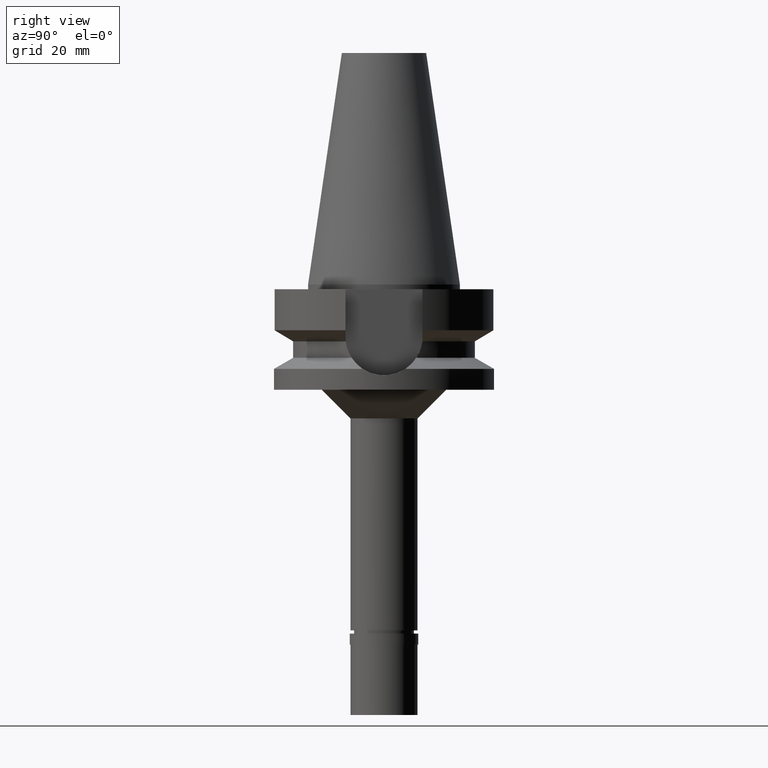
[diagram: clean part render]
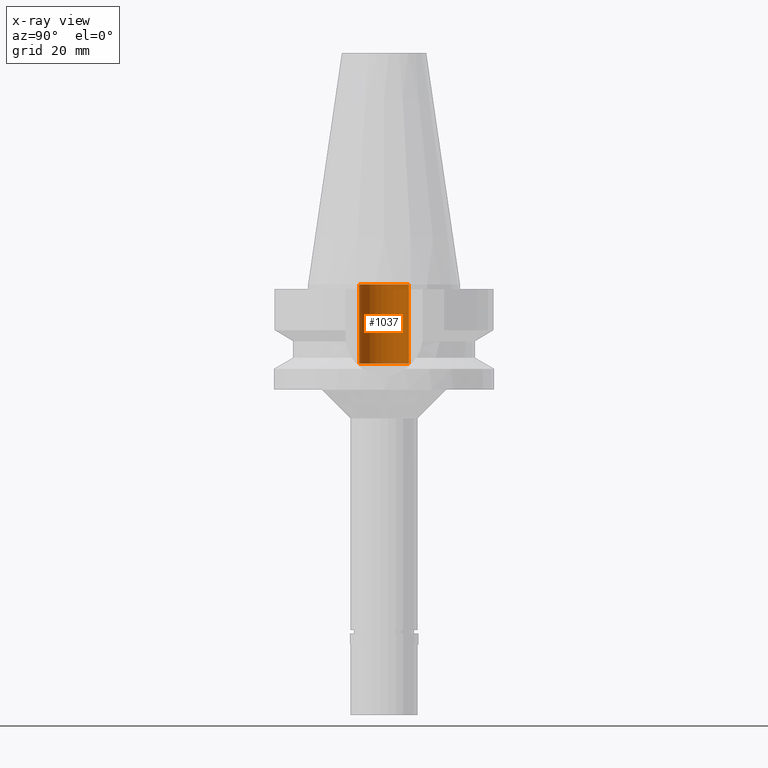
[diagram: x-ray — body ghosted, one internal face saturated and labeled with its STEP entity id]
A machine part, right view, then the same camera in x-ray: the body is ghosted and one INTERNAL B-rep face — a face not visible from any outside direction — is saturated and labeled: STEP entity #1037.
In plain terms, the highlighted cylindrical surface (edge-blend (fillet) strip) has radius 5.2 mm, axis along (0, 0, -1).
Its self-contained STEP definition (entity closure, byte-faithful):
#43 = EDGE_CURVE ( 'NONE', #842, #402, #1389, .T. ) ;
#230 = AXIS2_PLACEMENT_3D ( 'NONE', #2522, #805, #1501 ) ;
#231 = CARTESIAN_POINT ( 'NONE',  ( 0.0000000000000000000, 1.899672114836999856E-14, 9.947598300640998705E-14 ) ) ;
#234 = EDGE_LOOP ( 'NONE', ( #1242, #1843, #632, #325 ) ) ;
#273 = CIRCLE ( 'NONE', #230, 5.200000000000000178 ) ;
#325 = ORIENTED_EDGE ( 'NONE', *, *, #2244, .T. ) ;
#402 = VERTEX_POINT ( 'NONE', #837 ) ;
#448 = VECTOR ( 'NONE', #734, 1000.000000000000000 ) ;
#522 = CARTESIAN_POINT ( 'NONE',  ( 0.0000000000000000000, -5.200000000000000178, -16.60000000000000142 ) ) ;
#581 = LINE ( 'NONE', #1695, #1566 ) ;
#632 = ORIENTED_EDGE ( 'NONE', *, *, #1907, .T. ) ;
#638 = CARTESIAN_POINT ( 'NONE',  ( 0.0000000000000000000, 5.200000000000000178, -16.60000000000000142 ) ) ;
#648 = VERTEX_POINT ( 'NONE', #2589 ) ;
#734 = DIRECTION ( 'NONE',  ( 0.0000000000000000000, 0.0000000000000000000, 1.000000000000000000 ) ) ;
#760 = CARTESIAN_POINT ( 'NONE',  ( 0.0000000000000000000, -5.200000000000000178, -16.60000000000000142 ) ) ;
#805 = DIRECTION ( 'NONE',  ( 0.0000000000000000000, 0.0000000000000000000, -1.000000000000000000 ) ) ;
#837 = CARTESIAN_POINT ( 'NONE',  ( 0.0000000000000000000, -5.200000000000000178, 9.237055564880999494E-14 ) ) ;
#842 = VERTEX_POINT ( 'NONE', #760 ) ;
#847 = DIRECTION ( 'NONE',  ( 0.0000000000000000000, 0.0000000000000000000, -1.000000000000000000 ) ) ;
#880 = AXIS2_PLACEMENT_3D ( 'NONE', #231, #847, #1332 ) ;
#1037 = ADVANCED_FACE ( 'NONE', ( #1793 ), #2059, .F. ) ;
#1242 = ORIENTED_EDGE ( 'NONE', *, *, #2445, .F. ) ;
#1332 = DIRECTION ( 'NONE',  ( 0.0000000000000000000, -1.000000000000000000, 0.0000000000000000000 ) ) ;
#1389 = LINE ( 'NONE', #522, #448 ) ;
#1404 = DIRECTION ( 'NONE',  ( 0.0000000000000000000, 0.0000000000000000000, -1.000000000000000000 ) ) ;
#1501 = DIRECTION ( 'NONE',  ( 0.0000000000000000000, -1.000000000000000000, 0.0000000000000000000 ) ) ;
#1566 = VECTOR ( 'NONE', #1956, 1000.000000000000000 ) ;
#1695 = CARTESIAN_POINT ( 'NONE',  ( 0.0000000000000000000, 5.200000000000000178, -16.60000000000000142 ) ) ;
#1793 = FACE_OUTER_BOUND ( 'NONE', #234, .T. ) ;
#1822 = CARTESIAN_POINT ( 'NONE',  ( 0.0000000000000000000, 1.899672114836999856E-14, 55.12000000000000455 ) ) ;
#1843 = ORIENTED_EDGE ( 'NONE', *, *, #43, .F. ) ;
#1907 = EDGE_CURVE ( 'NONE', #842, #2189, #273, .T. ) ;
#1956 = DIRECTION ( 'NONE',  ( 0.0000000000000000000, 0.0000000000000000000, 1.000000000000000000 ) ) ;
#2059 = CYLINDRICAL_SURFACE ( 'NONE', #2183, 5.200000000000000178 ) ;
#2176 = CIRCLE ( 'NONE', #880, 5.200000000000000178 ) ;
#2183 = AXIS2_PLACEMENT_3D ( 'NONE', #1822, #1404, #2484 ) ;
#2189 = VERTEX_POINT ( 'NONE', #638 ) ;
#2244 = EDGE_CURVE ( 'NONE', #2189, #648, #581, .T. ) ;
#2445 = EDGE_CURVE ( 'NONE', #402, #648, #2176, .T. ) ;
#2484 = DIRECTION ( 'NONE',  ( 0.0000000000000000000, -1.000000000000000000, 0.0000000000000000000 ) ) ;
#2522 = CARTESIAN_POINT ( 'NONE',  ( 0.0000000000000000000, 1.899672114836999856E-14, -16.60000000000000142 ) ) ;
#2589 = CARTESIAN_POINT ( 'NONE',  ( 0.0000000000000000000, 5.200000000000000178, 9.237055564880999494E-14 ) ) ;